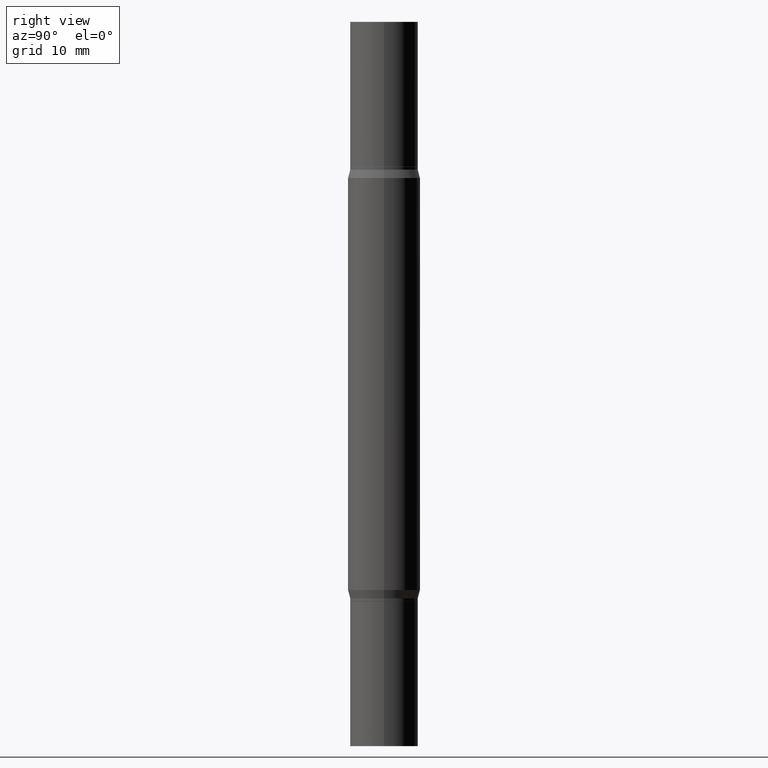
[diagram: clean part render]
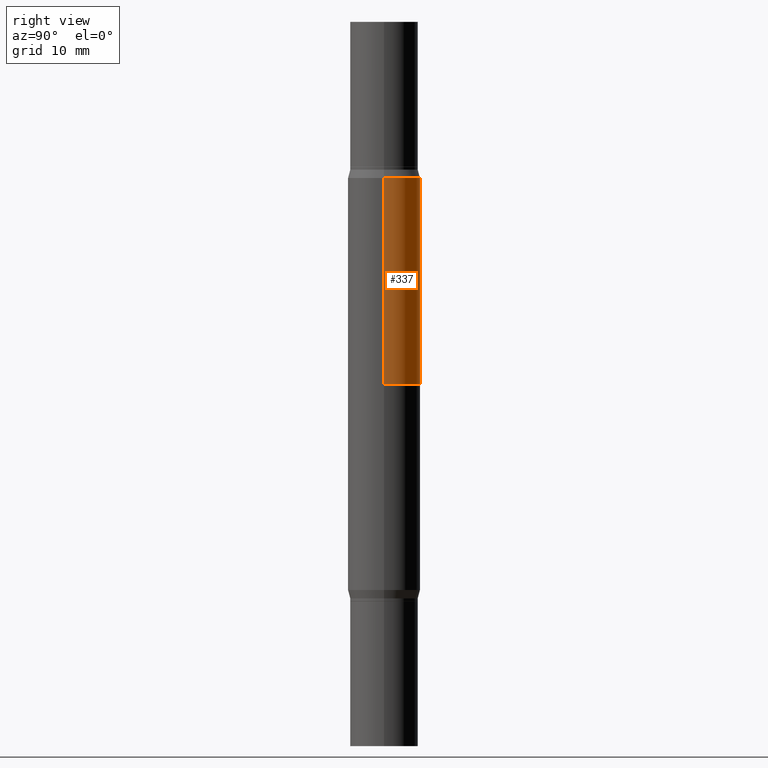
[diagram: same view with one face highlighted and labeled with its STEP entity id]
A machine part, right view. The second image highlights one B-rep face of the part: STEP entity #337.
In plain terms, the highlighted cylindrical surface (edge-blend (fillet) strip) has radius 3.175 mm, axis along (-0, -0, -1).
Its self-contained STEP definition (entity closure, byte-faithful):
#1 = DIRECTION ( 'NONE',  ( -2.445468806185136877E-29, -3.491805094961123683E-15, -1.000000000000000000 ) ) ;
#14 = VECTOR ( 'NONE', #571, 39.37007874015748143 ) ;
#51 = LINE ( 'NONE', #730, #14 ) ;
#73 = CIRCLE ( 'NONE', #212, 0.1250000000000000000 ) ;
#129 = CYLINDRICAL_SURFACE ( 'NONE', #508, 0.1250000000000000000 ) ;
#212 = AXIS2_PLACEMENT_3D ( 'NONE', #421, #578, #722 ) ;
#262 = EDGE_CURVE ( 'NONE', #832, #876, #808, .T. ) ;
#327 = ORIENTED_EDGE ( 'NONE', *, *, #262, .F. ) ;
#337 = ADVANCED_FACE ( 'NONE', ( #645 ), #129, .T. ) ;
#345 = DIRECTION ( 'NONE',  ( 0.000000000000000000, 1.000000000000000000, -4.370956789862821150E-15 ) ) ;
#350 = DIRECTION ( 'NONE',  ( -0.000000000000000000, -3.491643216902134830E-15, -1.000000000000000000 ) ) ;
#362 = ORIENTED_EDGE ( 'NONE', *, *, #718, .F. ) ;
#364 = CARTESIAN_POINT ( 'NONE',  ( 0.1250000000000000000, -9.601978376966118441E-15, -2.499999999999999556 ) ) ;
#390 = EDGE_CURVE ( 'NONE', #629, #876, #592, .T. ) ;
#421 = CARTESIAN_POINT ( 'NONE',  ( 4.795295336410958635E-29, -1.882062336673981410E-15, -0.5391099962990381078 ) ) ;
#433 = CARTESIAN_POINT ( 'NONE',  ( -0.1250000000000000000, -2.265644755392513326E-15, -1.249999999999999778 ) ) ;
#508 = AXIS2_PLACEMENT_3D ( 'NONE', #942, #651, #565 ) ;
#533 = AXIS2_PLACEMENT_3D ( 'NONE', #803, #350, #345 ) ;
#548 = CARTESIAN_POINT ( 'NONE',  ( 0.1250000000000000000, -2.754932671384765144E-15, -0.5391099962990381078 ) ) ;
#565 = DIRECTION ( 'NONE',  ( 1.000000000000000000, -6.982962677686262766E-15, 0.000000000000000000 ) ) ;
#566 = ORIENTED_EDGE ( 'NONE', *, *, #780, .F. ) ;
#571 = DIRECTION ( 'NONE',  ( -2.445468806185136877E-29, -3.491805094961123683E-15, -1.000000000000000000 ) ) ;
#578 = DIRECTION ( 'NONE',  ( 2.445468806185136597E-29, 3.491805094961124077E-15, 1.000000000000000000 ) ) ;
#592 = LINE ( 'NONE', #364, #670 ) ;
#593 = VERTEX_POINT ( 'NONE', #847 ) ;
#607 = EDGE_LOOP ( 'NONE', ( #566, #362, #755, #327 ) ) ;
#629 = VERTEX_POINT ( 'NONE', #548 ) ;
#645 = FACE_OUTER_BOUND ( 'NONE', #607, .T. ) ;
#651 = DIRECTION ( 'NONE',  ( -2.445468806185136597E-29, -3.491805094961124077E-15, -1.000000000000000000 ) ) ;
#670 = VECTOR ( 'NONE', #1, 39.37007874015748143 ) ;
#697 = CARTESIAN_POINT ( 'NONE',  ( 0.1250000000000000000, -3.996077339824737716E-15, -1.249999999999999778 ) ) ;
#718 = EDGE_CURVE ( 'NONE', #629, #593, #73, .T. ) ;
#722 = DIRECTION ( 'NONE',  ( 1.000000000000000000, -6.982962677686266711E-15, 0.000000000000000000 ) ) ;
#730 = CARTESIAN_POINT ( 'NONE',  ( -0.1250000000000000000, -7.871545792533893657E-15, -2.499999999999999556 ) ) ;
#755 = ORIENTED_EDGE ( 'NONE', *, *, #390, .T. ) ;
#780 = EDGE_CURVE ( 'NONE', #593, #832, #51, .T. ) ;
#803 = CARTESIAN_POINT ( 'NONE',  ( 3.056836007731420185E-29, -4.364351673553931682E-15, -1.249999999999999778 ) ) ;
#808 = CIRCLE ( 'NONE', #533, 0.1250000000000000000 ) ;
#832 = VERTEX_POINT ( 'NONE', #433 ) ;
#847 = CARTESIAN_POINT ( 'NONE',  ( -0.1250000000000000000, -1.024500086952540162E-15, -0.5391099962990381078 ) ) ;
#876 = VERTEX_POINT ( 'NONE', #697 ) ;
#942 = CARTESIAN_POINT ( 'NONE',  ( 0.000000000000000000, -8.729108042255335103E-15, -2.499999999999999556 ) ) ;